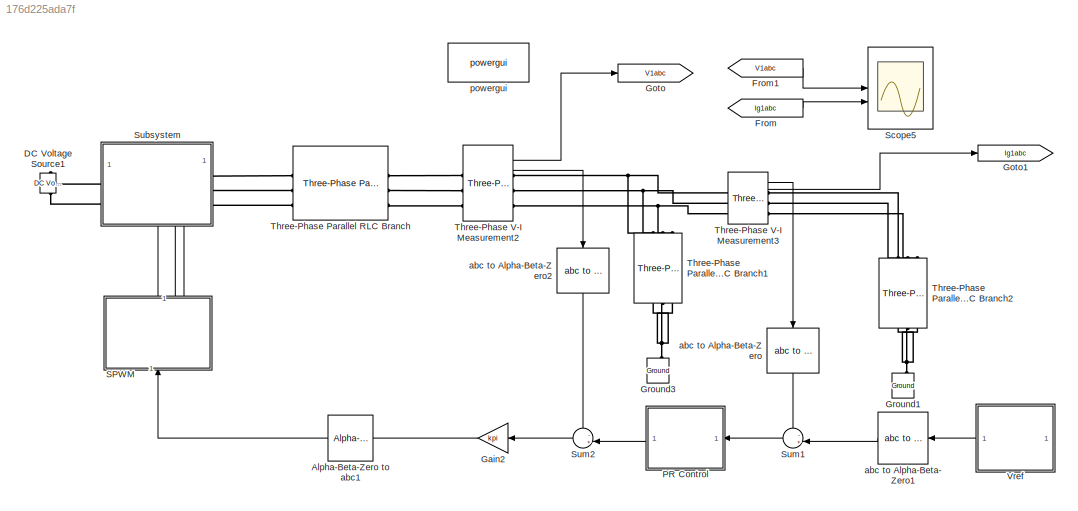
MODEL slx_176d225ada7f
KIND model
CONFIG AbsTol = auto
CONFIG EnableMultiTasking = off
CONFIG FixedStep = auto
CONFIG MaxStep = auto
CONFIG MinStep = auto
CONFIG RelTol = 1e-3
CONFIG SampleTimeConstraint = Unconstrained
CONFIG SolverName = VariableStepAuto
CONFIG StartTime = 0.0
CONFIG StopTime = 0.2
BLOCK [Reference] Alpha-Beta-Zero to abc1  REF=spsAlphaBetaZerotoabcLib/Alpha-Beta-Zero
to abc
  LibrarySourceBlock = sps_lib/Control/Alpha-Beta-Zero\nto abc
  NameLocation = top
  SourceBlock = spsAlphaBetaZerotoabcLib/Alpha-Beta-Zero\nto abc
  SourceType = Alpha-Beta-Zero to abc Transformation
BLOCK [Reference] DC Voltage Source1  REF=spsDCVoltageSourceLib/DC Voltage Source
  LibrarySourceBlock = sps_lib/Sources/DC Voltage Source
  SourceBlock = spsDCVoltageSourceLib/DC Voltage Source
  SourceType = DC Voltage Source
BLOCK [From] From
  GotoTag = Ig1abc
BLOCK [From] From1
  GotoTag = V1abc
BLOCK [Gain] Gain2
  Gain = kpi
  NameLocation = top
BLOCK [Goto] Goto
  GotoTag = V1abc
BLOCK [Goto] Goto1
  GotoTag = Ig1abc
BLOCK [Reference] Ground1  REF=spsGroundLib/Ground
  LibrarySourceBlock = sps_lib/Utilities/Ground
  NameLocation = right
  SourceBlock = spsGroundLib/Ground
  SourceType = Ground
BLOCK [Reference] Ground3  REF=spsGroundLib/Ground
  LibrarySourceBlock = sps_lib/Utilities/Ground
  NameLocation = right
  SourceBlock = spsGroundLib/Ground
  SourceType = Ground
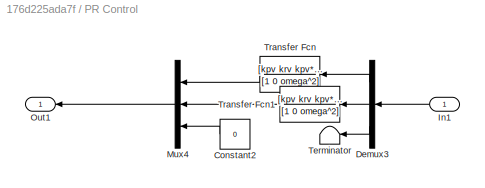
BLOCK [SubSystem] PR Control
  NameLocation = top
BLOCK [Constant] PR Control/Constant2
  NameLocation = top
  Value = 0
BLOCK [Demux] PR Control/Demux3
  NameLocation = top
  Outputs = 3
BLOCK [Inport] PR Control/In1
BLOCK [Mux] PR Control/Mux4
  DisplayOption = bar
  Inputs = 3
  NameLocation = top
BLOCK [Outport] PR Control/Out1
BLOCK [Terminator] PR Control/Terminator
  NameLocation = top
BLOCK [TransferFcn] PR Control/Transfer Fcn
  Denominator = [1 0 omega^2]
  NameLocation = top
  Numerator = [kpv krv kpv*(omega^2)]
BLOCK [TransferFcn] PR Control/Transfer Fcn1
  Denominator = [1 0 omega^2]
  NameLocation = top
  Numerator = [kpv krv kpv*(omega^2)]
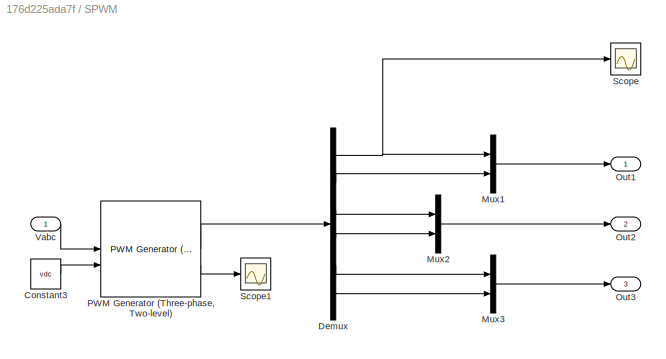
BLOCK [SubSystem] SPWM
  NameLocation = right
BLOCK [Constant] SPWM/Constant3
  Value = vdc
BLOCK [Demux] SPWM/Demux
  Outputs = 6
BLOCK [Mux] SPWM/Mux1
  DisplayOption = bar
  Inputs = 2
BLOCK [Mux] SPWM/Mux2
  DisplayOption = bar
  Inputs = 2
BLOCK [Mux] SPWM/Mux3
  DisplayOption = bar
  Inputs = 2
BLOCK [Outport] SPWM/Out1
  NameLocation = top
BLOCK [Outport] SPWM/Out2
  NameLocation = top
  Port = 2
BLOCK [Outport] SPWM/Out3
  NameLocation = top
  Port = 3
BLOCK [Reference] SPWM/PWM Generator (Three-phase, Two-level)  REF=eePwmGeneratorTwoLevel/PWM Generator
(Three-phase, Two-level)
  LibrarySourceBlock = ee_sl_lib/Pulse Width\nModulation/PWM Generator\n(Three-phase, Two-level)
  SourceBlock = eePwmGeneratorTwoLevel/PWM Generator\n(Three-phase, Two-level)
  SourceType = PWM Generator (three-phase, two-level)
BLOCK [Scope] SPWM/Scope
  Floating = off
  NumInputPorts = 1
  ScopeSpecificationString = Simulink.scopes.TimeScopeBlockCfg
BLOCK [Scope] SPWM/Scope1
  Floating = off
  NumInputPorts = 1
  ScopeSpecificationString = Simulink.scopes.TimeScopeBlockCfg('CurrentConfiguration', extmgr.ConfigurationSet(extmgr.Configuration('Core','General UI',true),extmgr.Configuration('Core','Source UI',true),extmgr.Configuration('Sources','WiredSimulink',true,'DataLoggingVariableName','ScopeData1'),extmgr.Configuration('Visuals','Time Domain',true,'SerializedDisplays',{struct('MinYLimReal','-2.82135','MaxYLimReal','1.55773','YLab...<+1541ch>
BLOCK [Inport] SPWM/Vabc
  NameLocation = top
BLOCK [Scope] Scope5
  Floating = off
  NumInputPorts = 2
  ScopeSpecificationString = Simulink.scopes.TimeScopeBlockCfg('CurrentConfiguration', extmgr.ConfigurationSet(extmgr.Configuration('Core','General UI',true,'FigureColor',[1 1 1]),extmgr.Configuration('Core','Source UI',true),extmgr.Configuration('Sources','WiredSimulink',true,'DataLoggingVariableName','ScopeData3'),extmgr.Configuration('Visuals','Time Domain',true,'SerializedDisplays',{struct('MinYLimReal','-475.59611','MaxY...<+2597ch>
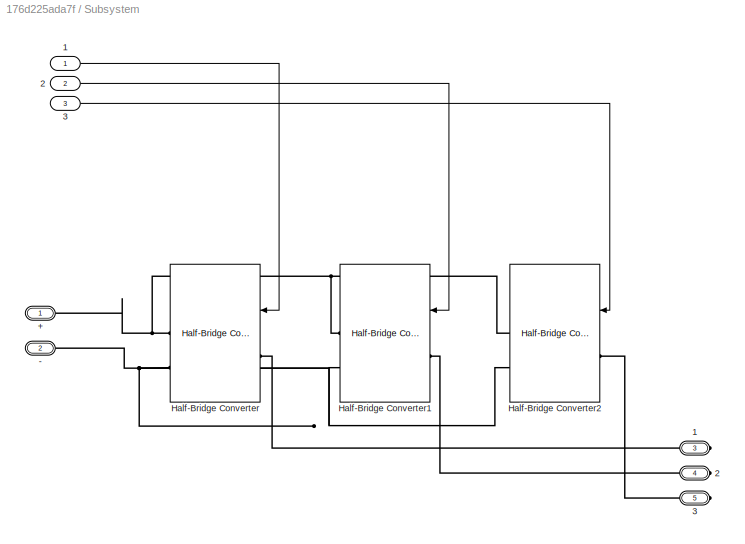
BLOCK [SubSystem] Subsystem
  PortSchema = {"entries":[{"content":{"sides":[{"content":{"connectorIds":["LConn1","LConn2"]},"type":"ConnectorPlacement.EquallySpacedRectSide","uuid":"21765539-0567-4900-b052-fb0c809e49e6"},{"content":{"connectorIds":["RConn1","RConn2","RConn3"],"side":"RIGHT"},"type":"ConnectorPlacement.EquallySpacedRectSide","uuid":"da60e673-aefd-4ef6-b5b1-e42a137712f7"},{"content":{"side":"TOP"},"type":"ConnectorPlacement....<+415ch>
BLOCK [Inport] Subsystem/  2
  Port = 2
BLOCK [Inport] Subsystem/  3
  Port = 3
BLOCK [Inport] Subsystem/ 1 
BLOCK [PMIOPort] Subsystem/+
  Side = Left
BLOCK [PMIOPort] Subsystem/-
  Port = 2
  Side = Left
BLOCK [PMIOPort] Subsystem/1
  Port = 3
  Side = Right
BLOCK [PMIOPort] Subsystem/2
  Port = 4
  Side = Right
BLOCK [PMIOPort] Subsystem/3
  Port = 5
  Side = Right
BLOCK [Reference] Subsystem/Half-Bridge Converter  REF=spsHalfBridgeConverterLib/Half-Bridge Converter
  LibrarySourceBlock = sps_lib/Power Electronics/Half-Bridge Converter
  SourceBlock = spsHalfBridgeConverterLib/Half-Bridge Converter
  SourceType = Half-Bridge Converter
BLOCK [Reference] Subsystem/Half-Bridge Converter1  REF=spsHalfBridgeConverterLib/Half-Bridge Converter
  LibrarySourceBlock = sps_lib/Power Electronics/Half-Bridge Converter
  SourceBlock = spsHalfBridgeConverterLib/Half-Bridge Converter
  SourceType = Half-Bridge Converter
BLOCK [Reference] Subsystem/Half-Bridge Converter2  REF=spsHalfBridgeConverterLib/Half-Bridge Converter
  LibrarySourceBlock = sps_lib/Power Electronics/Half-Bridge Converter
  SourceBlock = spsHalfBridgeConverterLib/Half-Bridge Converter
  SourceType = Half-Bridge Converter
BLOCK [Sum] Sum1
  Inputs = -+|
  NameLocation = top
BLOCK [Sum] Sum2
  Inputs = -+|
  NameLocation = top
BLOCK [Reference] Three-Phase Parallel RLC Branch  REF=spsThreePhaseParallelRLCBranchLib/Three-Phase
Parallel RLC Branch
  AttributesFormatString = \n
  LibrarySourceBlock = sps_lib/Passives/Three-Phase\nParallel RLC Branch
  SourceBlock = spsThreePhaseParallelRLCBranchLib/Three-Phase\nParallel RLC Branch
  SourceType = Three-Phase Parallel RLC Branch
BLOCK [Reference] Three-Phase Parallel RLC Branch1  REF=spsThreePhaseParallelRLCBranchLib/Three-Phase
Parallel RLC Branch
  AttributesFormatString = \n
  LibrarySourceBlock = sps_lib/Passives/Three-Phase\nParallel RLC Branch
  NameLocation = left
  SourceBlock = spsThreePhaseParallelRLCBranchLib/Three-Phase\nParallel RLC Branch
  SourceType = Three-Phase Parallel RLC Branch
BLOCK [Reference] Three-Phase Parallel RLC Branch2  REF=spsThreePhaseParallelRLCBranchLib/Three-Phase
Parallel RLC Branch
  AttributesFormatString = \n
  LibrarySourceBlock = sps_lib/Passives/Three-Phase\nParallel RLC Branch
  NameLocation = left
  SourceBlock = spsThreePhaseParallelRLCBranchLib/Three-Phase\nParallel RLC Branch
  SourceType = Three-Phase Parallel RLC Branch
BLOCK [Reference] Three-Phase V-I Measurement2  REF=spsThreePhaseVIMeasurementLib/Three-Phase
V-I Measurement
  LibrarySourceBlock = sps_lib/Sensors and Measurements/Three-Phase\nV-I Measurement
  SourceBlock = spsThreePhaseVIMeasurementLib/Three-Phase\nV-I Measurement
  SourceType = Three-Phase VI Measurement
BLOCK [Reference] Three-Phase V-I Measurement3  REF=spsThreePhaseVIMeasurementLib/Three-Phase
V-I Measurement
  LibrarySourceBlock = sps_lib/Sensors and Measurements/Three-Phase\nV-I Measurement
  SourceBlock = spsThreePhaseVIMeasurementLib/Three-Phase\nV-I Measurement
  SourceType = Three-Phase VI Measurement
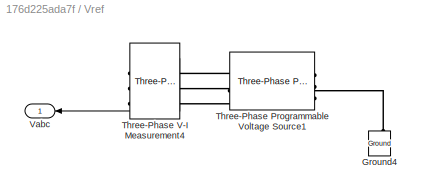
BLOCK [SubSystem] Vref
  NameLocation = top
BLOCK [Reference] Vref/Ground4  REF=spsGroundLib/Ground
  LibrarySourceBlock = sps_lib/Utilities/Ground
  NameLocation = right
  SourceBlock = spsGroundLib/Ground
  SourceType = Ground
BLOCK [Reference] Vref/Three-Phase Programmable Voltage Source1  REF=spsThreePhaseProgrammableVoltageSourceLib/Three-Phase
Programmable
Voltage Source
  LibrarySourceBlock = sps_lib/Sources/Three-Phase\nProgrammable\nVoltage Source
  NameLocation = top
  SourceBlock = spsThreePhaseProgrammableVoltageSourceLib/Three-Phase\nProgrammable\nVoltage Source
  SourceType = Three-Phase Programmable Voltage Source
BLOCK [Reference] Vref/Three-Phase V-I Measurement4  REF=spsThreePhaseVIMeasurementLib/Three-Phase
V-I Measurement
  LibrarySourceBlock = sps_lib/Sensors and Measurements/Three-Phase\nV-I Measurement
  NameLocation = top
  SourceBlock = spsThreePhaseVIMeasurementLib/Three-Phase\nV-I Measurement
  SourceType = Three-Phase VI Measurement
BLOCK [Outport] Vref/Vabc
BLOCK [Reference] abc to Alpha-Beta-Zero  REF=spsabctoAlphaBetaZeroLib/abc to
Alpha-Beta-Zero
  LibrarySourceBlock = sps_lib/Control/abc to\nAlpha-Beta-Zero
  NameLocation = left
  SourceBlock = spsabctoAlphaBetaZeroLib/abc to\nAlpha-Beta-Zero
  SourceType = abc to Alpha-Beta-Zero Transformation
BLOCK [Reference] abc to Alpha-Beta-Zero1  REF=spsabctoAlphaBetaZeroLib/abc to
Alpha-Beta-Zero
  LibrarySourceBlock = sps_lib/Control/abc to\nAlpha-Beta-Zero
  NameLocation = top
  SourceBlock = spsabctoAlphaBetaZeroLib/abc to\nAlpha-Beta-Zero
  SourceType = abc to Alpha-Beta-Zero Transformation
BLOCK [Reference] abc to Alpha-Beta-Zero2  REF=spsabctoAlphaBetaZeroLib/abc to
Alpha-Beta-Zero
  LibrarySourceBlock = sps_lib/Control/abc to\nAlpha-Beta-Zero
  NameLocation = left
  SourceBlock = spsabctoAlphaBetaZeroLib/abc to\nAlpha-Beta-Zero
  SourceType = abc to Alpha-Beta-Zero Transformation
BLOCK [Reference] powergui  REF=spspowerguiLib/powergui
  LibrarySourceBlock = sps_lib/powergui
  Priority = 1
  SourceBlock = spspowerguiLib/powergui
  SourceType = PSB option menu block
LINE Alpha-Beta-Zero to abc1:1 -> SPWM:1
LINE From1:1 -> Scope5:1
LINE From:1 -> Scope5:2
LINE Gain2:1 -> Alpha-Beta-Zero to abc1:1
LINE PR Control/Constant2:1 -> PR Control/Mux4:3
LINE PR Control/Demux3:1 -> PR Control/Transfer Fcn:1
LINE PR Control/Demux3:2 -> PR Control/Transfer Fcn1:1
LINE PR Control/Demux3:3 -> PR Control/Terminator:1
LINE PR Control/In1:1 -> PR Control/Demux3:1
LINE PR Control/Mux4:1 -> PR Control/Out1:1
LINE PR Control/Transfer Fcn1:1 -> PR Control/Mux4:2
LINE PR Control/Transfer Fcn:1 -> PR Control/Mux4:1
LINE PR Control:1 -> Sum2:2
LINE SPWM/Constant3:1 -> SPWM/PWM Generator (Three-phase, Two-level):2
NET SPWM/Demux:1 -> SPWM/Mux1:1, SPWM/Scope:1
LINE SPWM/Demux:2 -> SPWM/Mux1:2
LINE SPWM/Demux:3 -> SPWM/Mux2:1
LINE SPWM/Demux:4 -> SPWM/Mux2:2
LINE SPWM/Demux:5 -> SPWM/Mux3:1
LINE SPWM/Demux:6 -> SPWM/Mux3:2
LINE SPWM/Mux1:1 -> SPWM/Out1:1
LINE SPWM/Mux2:1 -> SPWM/Out2:1
LINE SPWM/Mux3:1 -> SPWM/Out3:1
LINE SPWM/PWM Generator (Three-phase, Two-level):1 -> SPWM/Demux:1
LINE SPWM/PWM Generator (Three-phase, Two-level):2 -> SPWM/Scope1:1
LINE SPWM/Vabc:1 -> SPWM/PWM Generator (Three-phase, Two-level):1
LINE SPWM:1 -> Subsystem:1
LINE SPWM:2 -> Subsystem:2
LINE SPWM:3 -> Subsystem:3
LINE Subsystem/  2:1 -> Subsystem/Half-Bridge Converter1:1
LINE Subsystem/  3:1 -> Subsystem/Half-Bridge Converter2:1
LINE Subsystem/ 1 :1 -> Subsystem/Half-Bridge Converter:1
LINE Sum1:1 -> PR Control:1
LINE Sum2:1 -> Gain2:1
LINE Three-Phase V-I Measurement2:1 -> Goto:1
LINE Three-Phase V-I Measurement2:2 -> abc to Alpha-Beta-Zero2:1
LINE Three-Phase V-I Measurement3:1 -> abc to Alpha-Beta-Zero:1
LINE Three-Phase V-I Measurement3:2 -> Goto1:1
LINE Vref/Three-Phase V-I Measurement4:1 -> Vref/Vabc:1
LINE Vref:1 -> abc to Alpha-Beta-Zero1:1
LINE abc to Alpha-Beta-Zero1:1 -> Sum1:2
LINE abc to Alpha-Beta-Zero2:1 -> Sum2:1
LINE abc to Alpha-Beta-Zero:1 -> Sum1:1
PLINE DC Voltage Source1:LConn1 -- Subsystem:LConn2
PLINE DC Voltage Source1:RConn1 -- Subsystem:LConn1
PNET net1: Ground1:LConn1 -- Three-Phase Parallel RLC Branch2:RConn1 -- Three-Phase Parallel RLC Branch2:RConn2 -- Three-Phase Parallel RLC Branch2:RConn3
PNET net2: Ground3:LConn1 -- Three-Phase Parallel RLC Branch1:RConn1 -- Three-Phase Parallel RLC Branch1:RConn2 -- Three-Phase Parallel RLC Branch1:RConn3
PNET net3: Subsystem/+:RConn1 -- Subsystem/Half-Bridge Converter1:RConn1 -- Subsystem/Half-Bridge Converter2:RConn1 -- Subsystem/Half-Bridge Converter:RConn1
PNET net4: Subsystem/-:RConn1 -- Subsystem/Half-Bridge Converter1:RConn2 -- Subsystem/Half-Bridge Converter2:RConn2 -- Subsystem/Half-Bridge Converter:RConn2
PLINE Subsystem/1:RConn1 -- Subsystem/Half-Bridge Converter:LConn1
PLINE Subsystem/2:RConn1 -- Subsystem/Half-Bridge Converter1:LConn1
PLINE Subsystem/3:RConn1 -- Subsystem/Half-Bridge Converter2:LConn1
PLINE Subsystem:RConn1 -- Three-Phase Parallel RLC Branch:LConn1
PLINE Subsystem:RConn2 -- Three-Phase Parallel RLC Branch:LConn2
PLINE Subsystem:RConn3 -- Three-Phase Parallel RLC Branch:LConn3
PNET net5: Three-Phase Parallel RLC Branch1:LConn1 -- Three-Phase V-I Measurement2:RConn1 -- Three-Phase V-I Measurement3:LConn1
PNET net6: Three-Phase Parallel RLC Branch1:LConn2 -- Three-Phase V-I Measurement2:RConn2 -- Three-Phase V-I Measurement3:LConn2
PNET net7: Three-Phase Parallel RLC Branch1:LConn3 -- Three-Phase V-I Measurement2:RConn3 -- Three-Phase V-I Measurement3:LConn3
PLINE Three-Phase Parallel RLC Branch2:LConn1 -- Three-Phase V-I Measurement3:RConn1
PLINE Three-Phase Parallel RLC Branch2:LConn2 -- Three-Phase V-I Measurement3:RConn2
PLINE Three-Phase Parallel RLC Branch2:LConn3 -- Three-Phase V-I Measurement3:RConn3
PLINE Three-Phase Parallel RLC Branch:RConn1 -- Three-Phase V-I Measurement2:LConn1
PLINE Three-Phase Parallel RLC Branch:RConn2 -- Three-Phase V-I Measurement2:LConn2
PLINE Three-Phase Parallel RLC Branch:RConn3 -- Three-Phase V-I Measurement2:LConn3
PLINE Vref/Ground4:LConn1 -- Vref/Three-Phase Programmable Voltage Source1:LConn1
PLINE Vref/Three-Phase Programmable Voltage Source1:RConn1 -- Vref/Three-Phase V-I Measurement4:LConn1
PLINE Vref/Three-Phase Programmable Voltage Source1:RConn2 -- Vref/Three-Phase V-I Measurement4:LConn2
PLINE Vref/Three-Phase Programmable Voltage Source1:RConn3 -- Vref/Three-Phase V-I Measurement4:LConn3
note: NET lines group one-source signal fan-out (src -> all destinations, sorted); 1:1 wires keep LINE; PNET lines group multi-terminal physical nets as a canonical sorted terminal list (undirected conserving connections); 2-terminal nets keep the pairwise PLINE form
